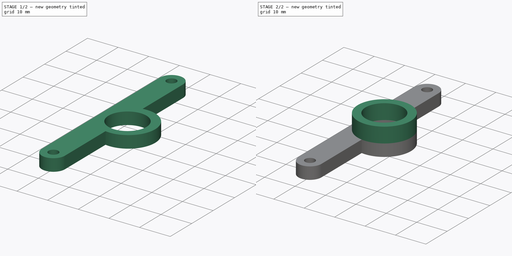
[diagram: build sequence overview — one tinted view per stage of 2, left to right]
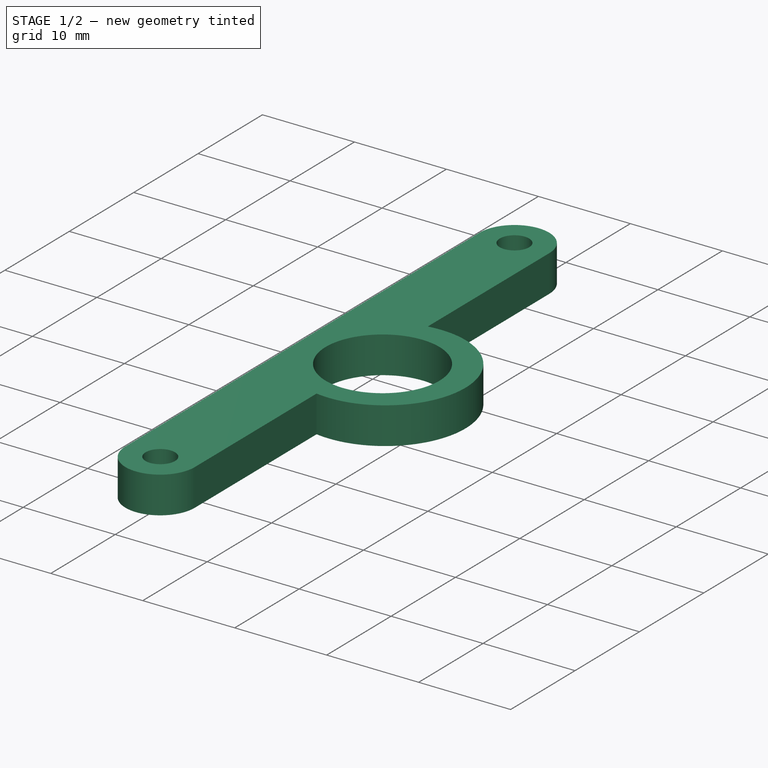
[diagram: stage 1 of 2 — iso view after this stage's code; geometry added in this stage tinted green]
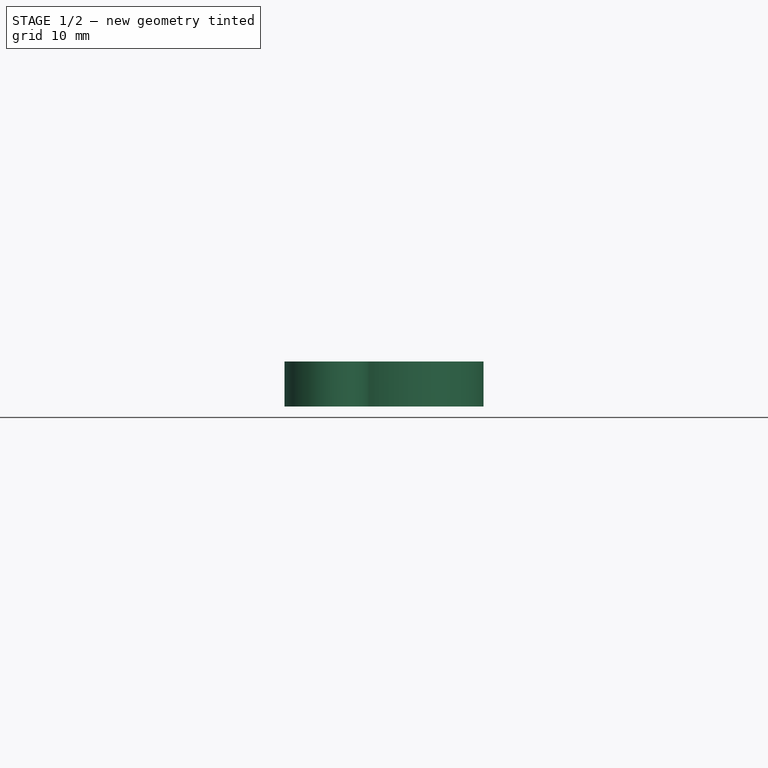
[diagram: stage 1 of 2 — front view after this stage's code; geometry added in this stage tinted green]
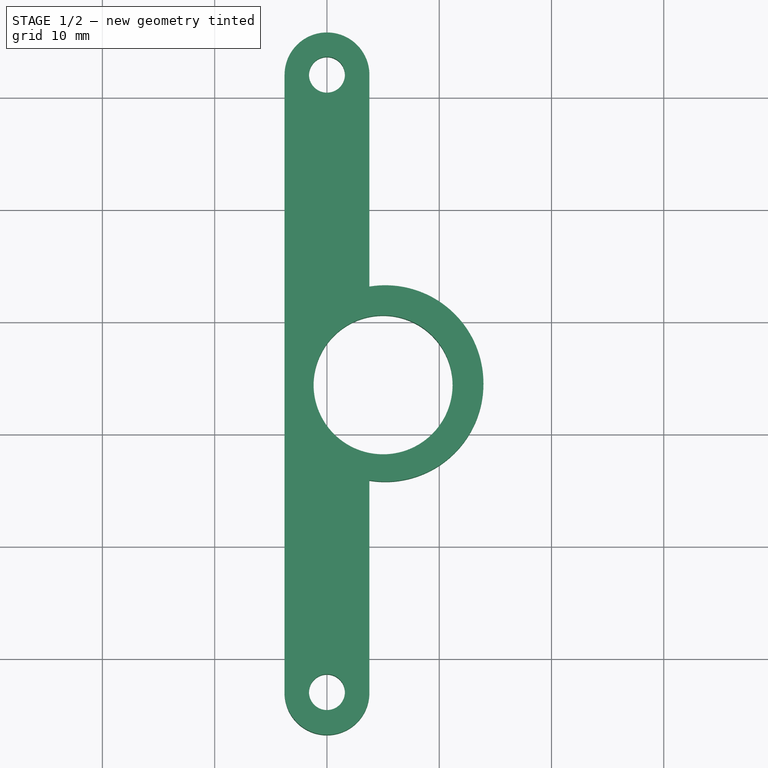
[diagram: stage 1 of 2 — top view after this stage's code; geometry added in this stage tinted green]
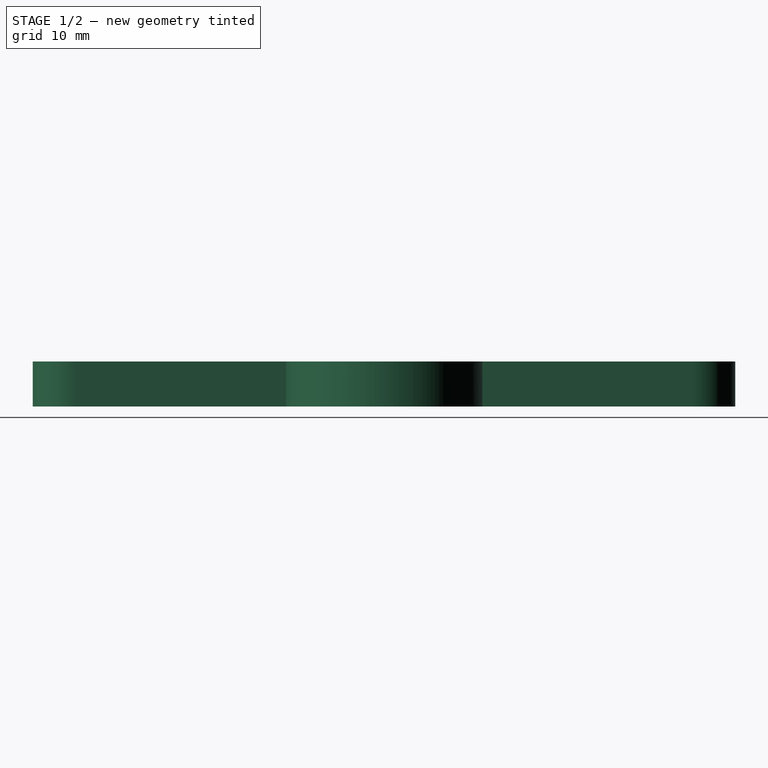
[diagram: stage 1 of 2 — right view after this stage's code; geometry added in this stage tinted green]
FCSTD DOCUMENT  (FreeCAD 0.17R13541 (Git))
Label: portacondensatoreTPU
License: All rights reserved
LicenseURL: http://it.wikipedia.org/wiki/<copyright redacted>
objects: Sketcher::SketchObject×2, PartDesign::Pad×2, PartDesign::Body×1
note: 7 computed .brp shape members not serialized (recipe doc carries the construction recipe); baked Part::Feature solids carry a one-line shape summary decoded from their .brp

FEATURE [Sketcher::SketchObject] Sketch
  MapMode = 5
  Support = -> [XY_Plane]
  sketch-geometry (10):
    g0: Circle CenterX=0 CenterY=22.0112 CenterZ=0 NormalX=0 NormalY=0 NormalZ=1 AngleXU=0 Radius=1.6
    g1: Circle CenterX=0 CenterY=-32.9888 CenterZ=0 NormalX=0 NormalY=0 NormalZ=1 AngleXU=0 Radius=1.6
    g2: ArcOfCircle CenterX=0.00367127 CenterY=21.9951 CenterZ=0 NormalX=0 NormalY=0 NormalZ=1 AngleXU=0 Radius=3.78015 StartAngle=0.00904783 EndAngle=3.14423
    g3: ArcOfCircle CenterX=0 CenterY=-33.0129 CenterZ=0 NormalX=0 NormalY=0 NormalZ=1 AngleXU=0 Radius=3.78015 StartAngle=3.18575 EndAngle=6.28486
    g4: LineSegment StartX=-3.77647 StartY=21.9852 StartZ=0 EndX=-3.77647 EndY=-33.1798 EndZ=0
    g5: LineSegment [constr] StartX=0 StartY=-5.48876 StartZ=0 EndX=5 EndY=-5.61494 EndZ=0
    g6: Circle CenterX=5 CenterY=-5.61494 CenterZ=0 NormalX=0 NormalY=0 NormalZ=1 AngleXU=0 Radius=6.19152
    g7: LineSegment StartX=3.78014 StartY=-33.0066 StartZ=0 EndX=3.78014 EndY=-14.1163 EndZ=0
    g8: LineSegment StartX=3.78367 StartY=22.0293 StartZ=0 EndX=3.78367 EndY=3.13905 EndZ=0
    g9: ArcOfCircle CenterX=5.19696 CenterY=-5.48894 CenterZ=0 NormalX=0 NormalY=0 NormalZ=1 AngleXU=0 Radius=8.74297 StartAngle=4.54962 EndAngle=8.01634
  constraints (20):
    c: Radius(g0) = 1.6
    c: Equal(g1,g0)
    c: DistanceY(g1,g0) = 55
    c: Equal(g3,g2)
    c: Vertical(g4)
    c: Coincident(g2,g4)
    c: Coincident(g4,g3)
    c: PointOnObject(g0,g-2)
    c: PointOnObject(g3,g-2)
    c: PointOnObject(g1,g-2)
    c: DistanceX(g5,g5) = 5
    c: PointOnObject(g5,g-2)
    c: DistanceY(g5,g0) = 27.5
    c: Equal(g8,g7)
    c: Coincident(g8,g9)
    c: Coincident(g7,g9)
    c: Vertical(g8)
    c: Vertical(g7)
    c: Coincident(g3,g7)
    c: Coincident(g2,g8)
FEATURE [PartDesign::Pad] Pad
  Length = 4
  Length2 = 100
  Profile = -> Sketch
  Type = 0
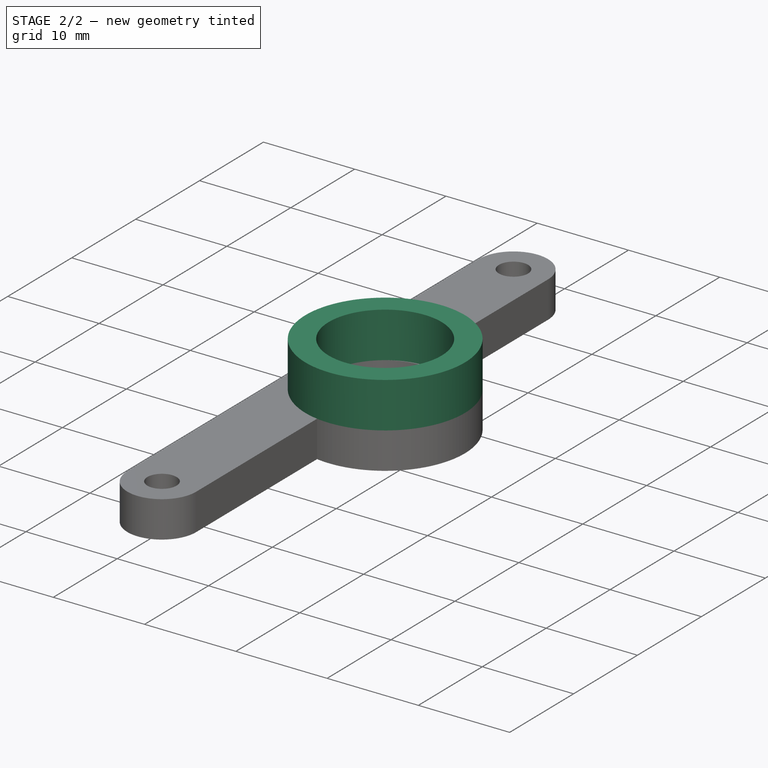
[diagram: stage 2 of 2 — iso view after this stage's code; geometry added in this stage tinted green]
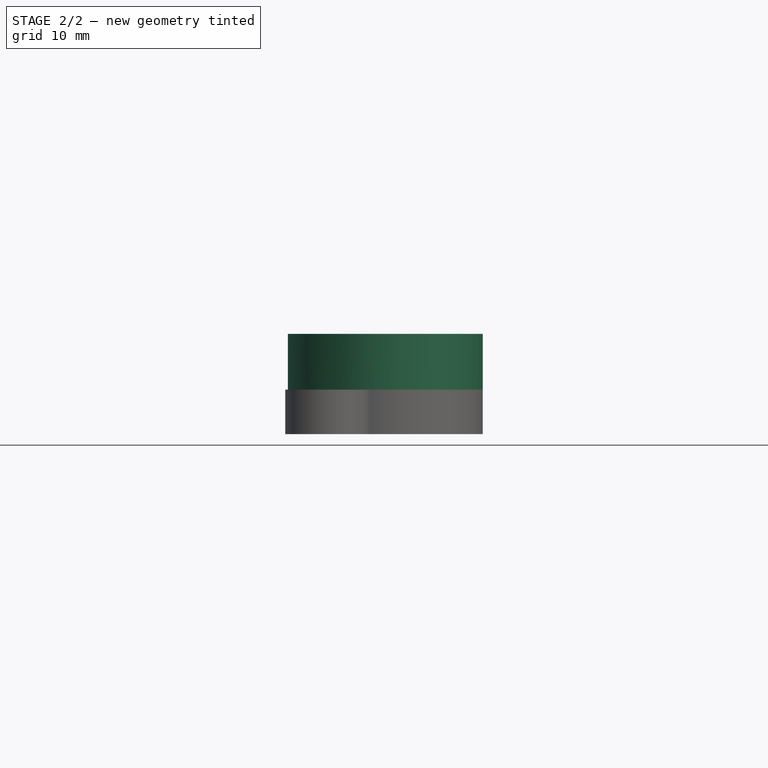
[diagram: stage 2 of 2 — front view after this stage's code; geometry added in this stage tinted green]
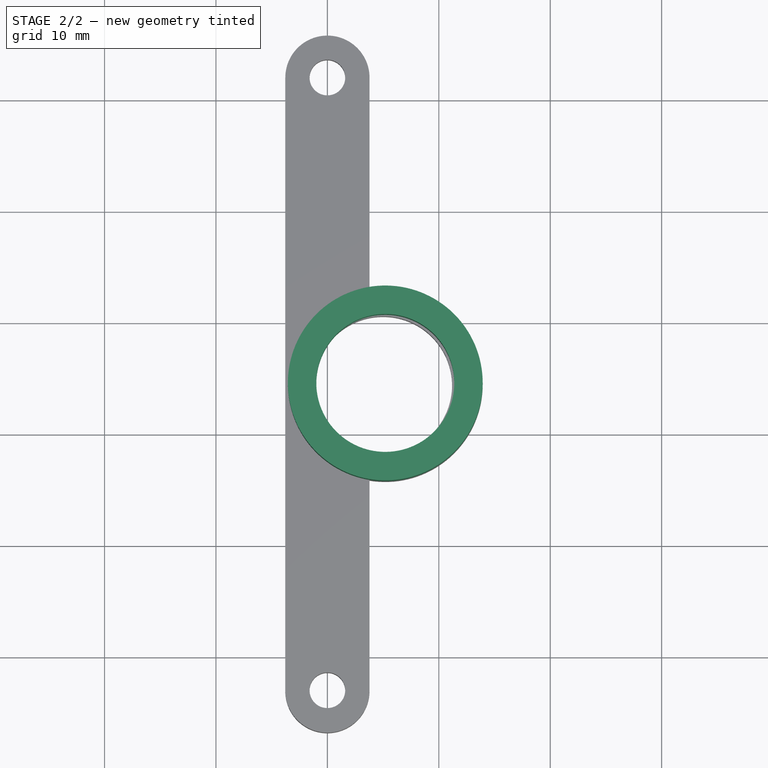
[diagram: stage 2 of 2 — top view after this stage's code; geometry added in this stage tinted green]
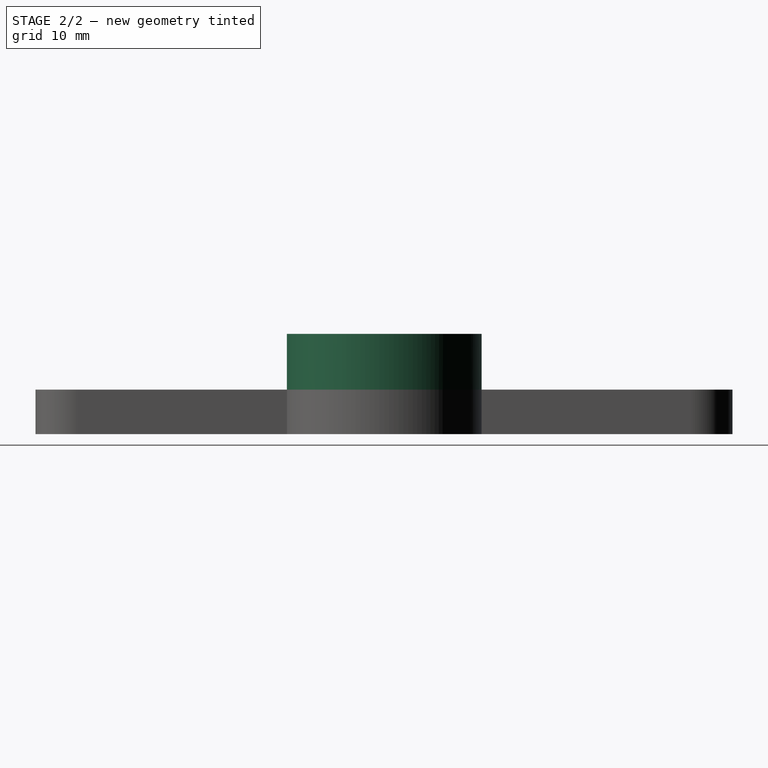
[diagram: stage 2 of 2 — right view after this stage's code; geometry added in this stage tinted green]
FEATURE [Sketcher::SketchObject] Sketch001
  ExternalGeometry = -> [Pad]
  MapMode = 5
  Placement = pos=(0,0,4) rot=(0,0,1;0rad)
  Support = -> [Pad]
  sketch-geometry (2):
    g0: Circle CenterX=5.19696 CenterY=-5.48894 CenterZ=0 NormalX=0 NormalY=0 NormalZ=1 AngleXU=0 Radius=6.19152
    g1: Circle CenterX=5.19696 CenterY=-5.48894 CenterZ=0 NormalX=0 NormalY=0 NormalZ=1 AngleXU=0 Radius=8.74297
  constraints (3):
    c: Coincident(g1,g0)
    c: Equal(g0,g-3)
    c: Equal(g1,g-4)
FEATURE [PartDesign::Pad] Pad001
  BaseFeature = -> Pad
  Length = 5
  Length2 = 100
  Profile = -> Sketch001
  Type = 0
FEATURE [PartDesign::Body] Body
  Group = -> [Sketch,Pad,Sketch001,Pad001]
  Origin = -> Origin
  Tip = -> Pad001
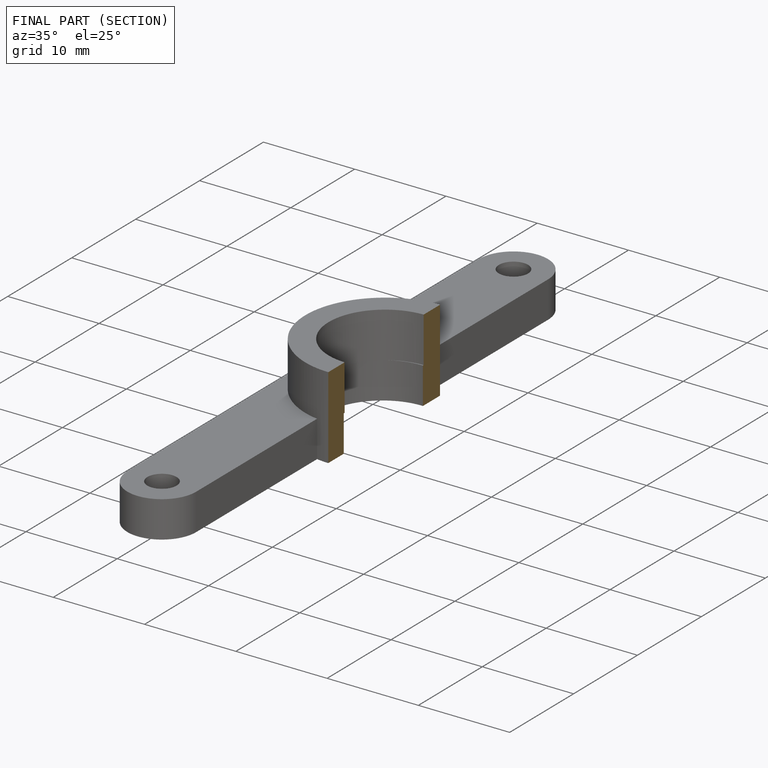
[diagram: finished part — half-section view (interior)]
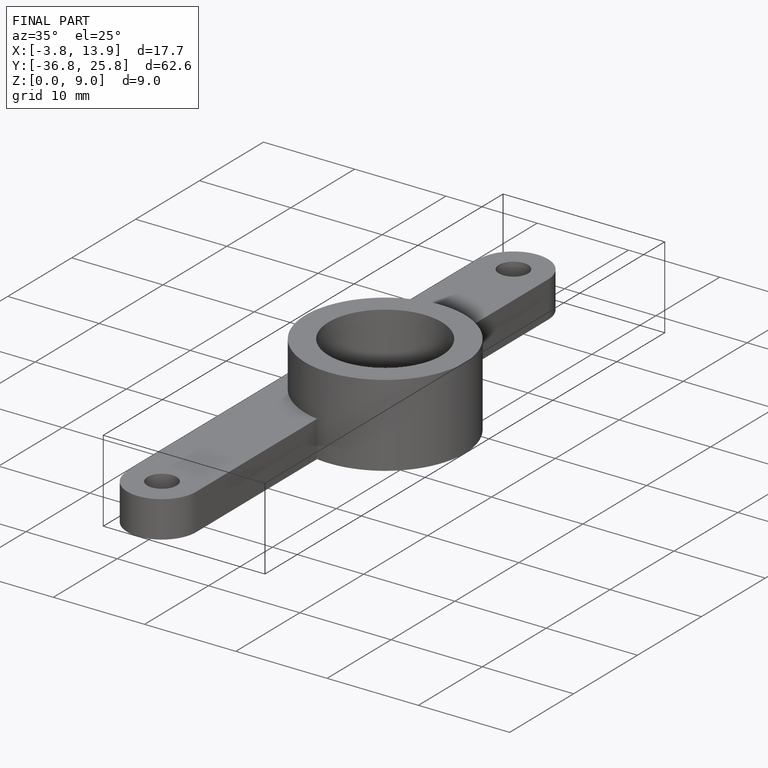
[diagram: finished part — iso view with bounding-box wireframe]
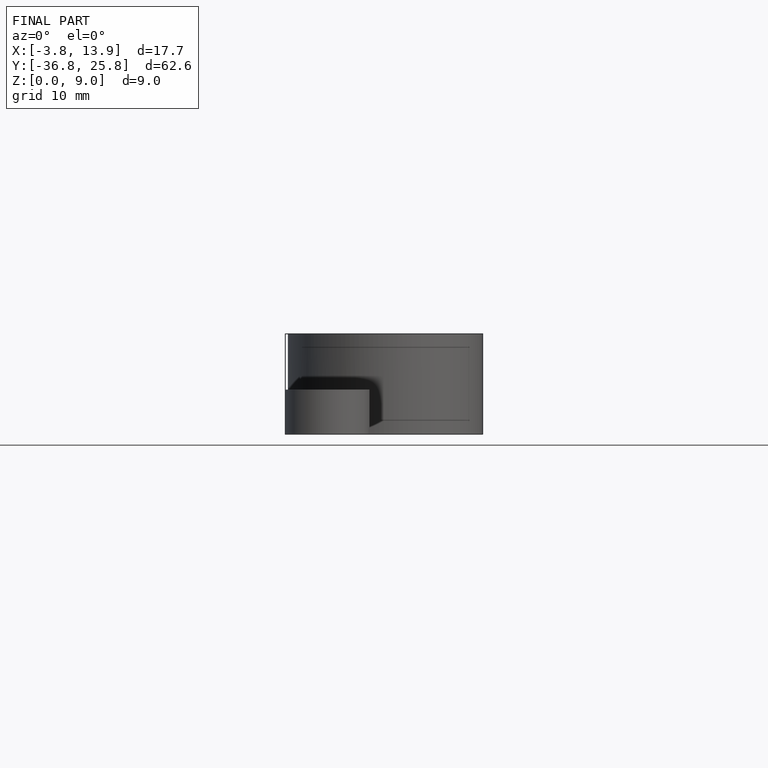
[diagram: finished part — front view with bounding-box wireframe]
